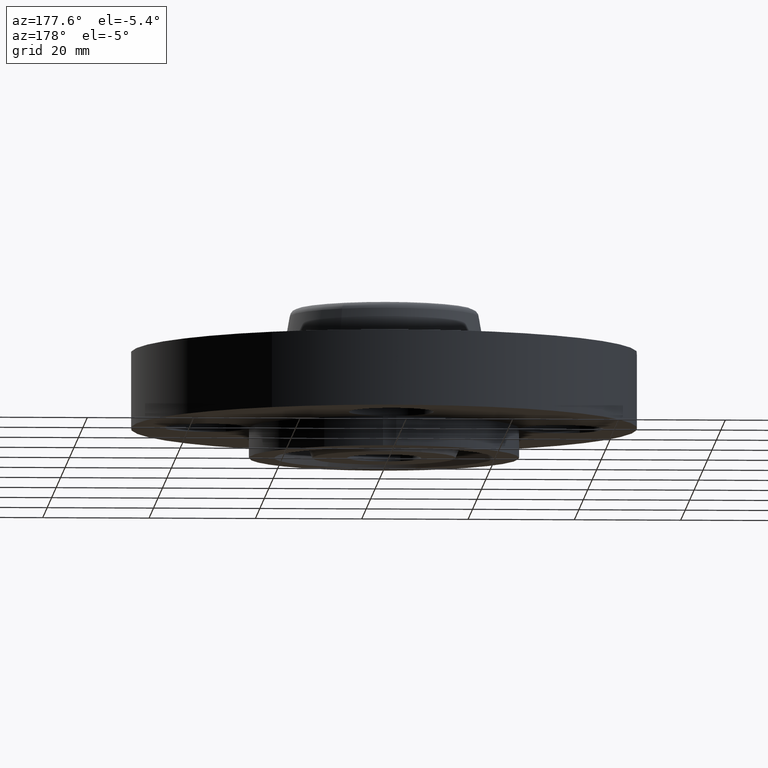
[diagram: clean part render]
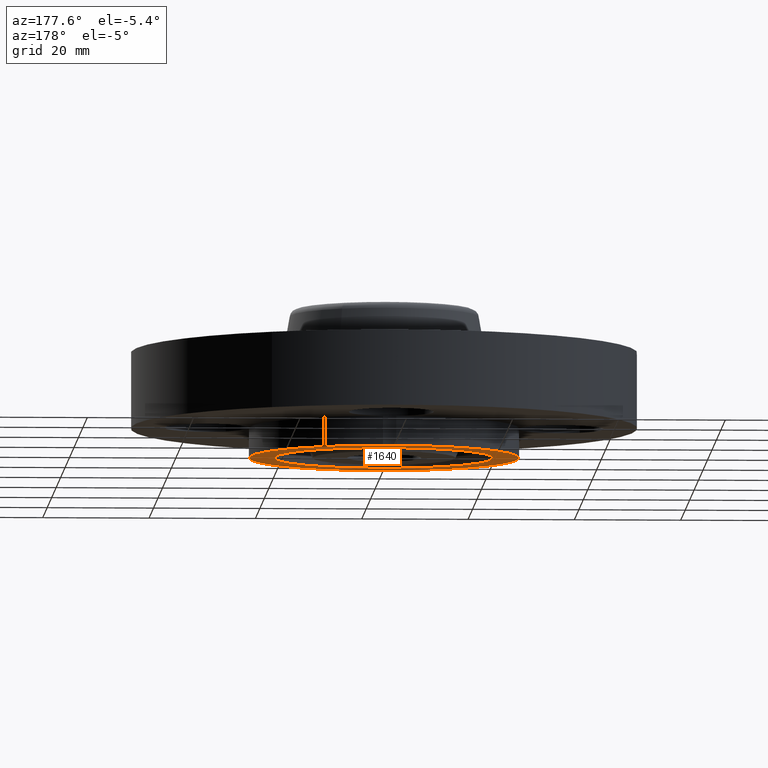
[diagram: same view with one face highlighted and labeled with its STEP entity id]
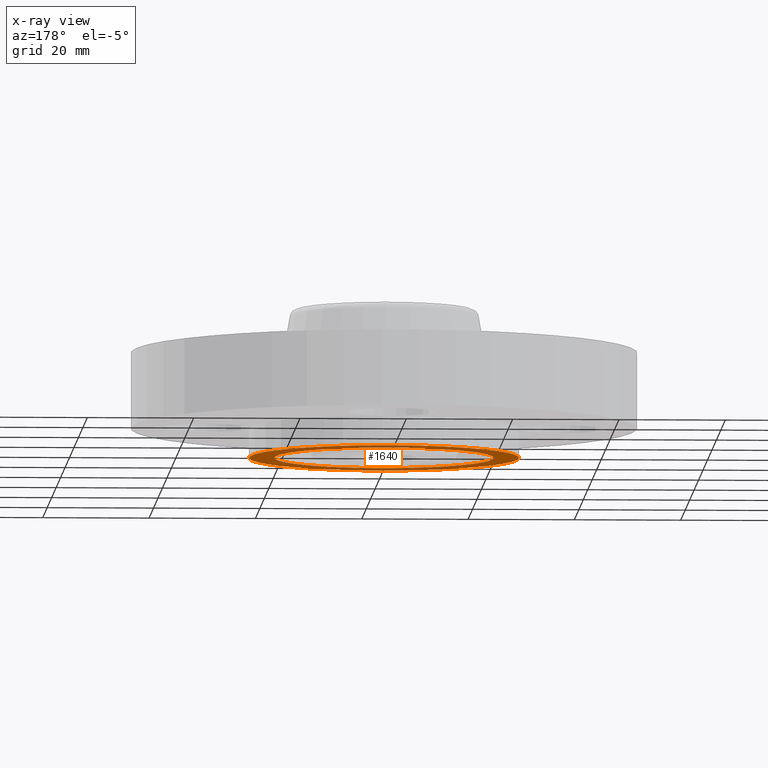
[diagram: x-ray of the same camera — body ghosted, the highlighted face saturated]
A machine part, auxiliary view. The second image highlights one B-rep face of the part: STEP entity #1640.
The next image is the same camera in x-ray: the body ghosted, the highlighted face saturated — about 0% of this face is hidden behind the body in this view.
In plain terms, the highlighted planar face has unit normal (0, 0, -1).
Its self-contained STEP definition (entity closure, byte-faithful):
#271=AXIS2_PLACEMENT_3D('Plane Axis2P3D',#268,#269,#270) ;
#1010=AXIS2_PLACEMENT_3D('Circle Axis2P3D',#1008,#1009,$) ;
#1073=AXIS2_PLACEMENT_3D('Circle Axis2P3D',#1071,#1072,$) ;
#1179=AXIS2_PLACEMENT_3D('Circle Axis2P3D',#1177,#1178,$) ;
#1285=AXIS2_PLACEMENT_3D('Circle Axis2P3D',#1283,#1284,$) ;
#1445=AXIS2_PLACEMENT_3D('Circle Axis2P3D',#1443,#1444,$) ;
#1483=AXIS2_PLACEMENT_3D('Circle Axis2P3D',#1481,#1482,$) ;
#1580=AXIS2_PLACEMENT_3D('Circle Axis2P3D',#1578,#1579,$) ;
#1599=AXIS2_PLACEMENT_3D('Circle Axis2P3D',#1597,#1598,$) ;
#1604=AXIS2_PLACEMENT_3D('Circle Axis2P3D',#1602,#1603,$) ;
#1611=AXIS2_PLACEMENT_3D('Circle Axis2P3D',#1609,#1610,$) ;
#1616=AXIS2_PLACEMENT_3D('Circle Axis2P3D',#1614,#1615,$) ;
#1621=AXIS2_PLACEMENT_3D('Circle Axis2P3D',#1619,#1620,$) ;
#268=CARTESIAN_POINT('Axis2P3D Location',(0.,0.273000000001,-0.219000000001)) ;
#1005=CARTESIAN_POINT('Vertex',(0.0488269755133,0.998807251894,-0.219000000001)) ;
#1008=CARTESIAN_POINT('Axis2P3D Location',(0.,1.31000000001,-0.218999999985)) ;
#1012=CARTESIAN_POINT('Vertex',(-0.0488269755133,0.998807251894,-0.219000000001)) ;
#1068=CARTESIAN_POINT('Vertex',(0.998807251893,-0.048826975513,-0.219000000001)) ;
#1071=CARTESIAN_POINT('Axis2P3D Location',(1.31000000001,8.02143653445E-017,-0.218999999985)) ;
#1075=CARTESIAN_POINT('Vertex',(0.998807251893,0.0488269755136,-0.219000000001)) ;
#1174=CARTESIAN_POINT('Vertex',(-0.0488269755133,-0.998807251893,-0.219000000001)) ;
#1177=CARTESIAN_POINT('Axis2P3D Location',(1.60428730689E-016,-1.31000000001,-0.218999999985)) ;
#1181=CARTESIAN_POINT('Vertex',(0.0488269755133,-0.998807251893,-0.219000000001)) ;
#1280=CARTESIAN_POINT('Vertex',(-0.998807251893,0.0488269755136,-0.219000000001)) ;
#1283=CARTESIAN_POINT('Axis2P3D Location',(-1.31000000001,-2.40643096033E-016,-0.218999999985)) ;
#1287=CARTESIAN_POINT('Vertex',(-0.998807251893,-0.048826975513,-0.219000000001)) ;
#1443=CARTESIAN_POINT('Axis2P3D Location',(0.,0.,-0.219000000001)) ;
#1447=CARTESIAN_POINT('Vertex',(0.389533250145,-0.713035831536,-0.219000000001)) ;
#1449=CARTESIAN_POINT('Vertex',(-0.389533250145,0.713035831536,-0.219000000001)) ;
#1481=CARTESIAN_POINT('Axis2P3D Location',(0.,0.,-0.219000000001)) ;
#1575=CARTESIAN_POINT('Vertex',(0.479425538595,0.877582561885,-0.219000000001)) ;
#1578=CARTESIAN_POINT('Axis2P3D Location',(0.,0.,-0.218999999995)) ;
#1597=CARTESIAN_POINT('Axis2P3D Location',(-8.25811510163E-011,8.28769074365E-011,-0.219000000001)) ;
#1602=CARTESIAN_POINT('Axis2P3D Location',(-8.48058631194E-011,-2.64434283744E-010,-0.219000000001)) ;
#1606=CARTESIAN_POINT('Vertex',(-0.479425538595,-0.877582561884,-0.219000000001)) ;
#1609=CARTESIAN_POINT('Axis2P3D Location',(-9.07886189674E-012,-1.07334613638E-011,-0.219000000001)) ;
#1614=CARTESIAN_POINT('Axis2P3D Location',(8.25811510163E-011,-8.22848351136E-011,-0.219000000001)) ;
#1619=CARTESIAN_POINT('Axis2P3D Location',(9.07886189674E-012,1.13255336867E-011,-0.219000000001)) ;
#269=DIRECTION('Axis2P3D Direction',(0.,0.,-0.0393700787402)) ;
#270=DIRECTION('Axis2P3D XDirection',(0.0393700787402,0.,0.)) ;
#1009=DIRECTION('Axis2P3D Direction',(0.,-0.,-0.0393700787402)) ;
#1072=DIRECTION('Axis2P3D Direction',(0.,-0.,-0.0393700787402)) ;
#1178=DIRECTION('Axis2P3D Direction',(0.,0.,-0.0393700787402)) ;
#1284=DIRECTION('Axis2P3D Direction',(0.,0.,-0.0393700787402)) ;
#1444=DIRECTION('Axis2P3D Direction',(0.,-0.,-0.0393700787402)) ;
#1482=DIRECTION('Axis2P3D Direction',(0.,-0.,-0.0393700787402)) ;
#1579=DIRECTION('Axis2P3D Direction',(0.,0.,-0.0393700787402)) ;
#1598=DIRECTION('Axis2P3D Direction',(0.,0.,-0.0393700787402)) ;
#1603=DIRECTION('Axis2P3D Direction',(0.,0.,-0.0393700787402)) ;
#1610=DIRECTION('Axis2P3D Direction',(0.,0.,-0.0393700787402)) ;
#1615=DIRECTION('Axis2P3D Direction',(0.,0.,-0.0393700787402)) ;
#1620=DIRECTION('Axis2P3D Direction',(0.,0.,-0.0393700787402)) ;
#1625=ORIENTED_EDGE('',*,*,#1601,.T.) ;
#1626=ORIENTED_EDGE('',*,*,#1183,.F.) ;
#1627=ORIENTED_EDGE('',*,*,#1608,.T.) ;
#1628=ORIENTED_EDGE('',*,*,#1613,.T.) ;
#1629=ORIENTED_EDGE('',*,*,#1289,.F.) ;
#1630=ORIENTED_EDGE('',*,*,#1618,.T.) ;
#1631=ORIENTED_EDGE('',*,*,#1014,.F.) ;
#1632=ORIENTED_EDGE('',*,*,#1582,.T.) ;
#1633=ORIENTED_EDGE('',*,*,#1623,.T.) ;
#1634=ORIENTED_EDGE('',*,*,#1077,.F.) ;
#1637=ORIENTED_EDGE('',*,*,#1451,.F.) ;
#1638=ORIENTED_EDGE('',*,*,#1485,.F.) ;
#1639=FACE_BOUND('',#1636,.T.) ;
#1640=ADVANCED_FACE('PartBody',(#1635,#1639),#272,.T.) ;
#1011=CIRCLE('generated circle',#1010,0.315000000001) ;
#1074=CIRCLE('generated circle',#1073,0.315000000001) ;
#1180=CIRCLE('generated circle',#1179,0.315000000001) ;
#1286=CIRCLE('generated circle',#1285,0.315000000001) ;
#1446=CIRCLE('generated circle',#1445,0.812500000003) ;
#1484=CIRCLE('generated circle',#1483,0.812500000003) ;
#1581=CIRCLE('generated circle',#1580,1.) ;
#1600=CIRCLE('generated circle',#1599,1.00000000007) ;
#1605=CIRCLE('generated circle',#1604,0.999999999718) ;
#1612=CIRCLE('generated circle',#1611,0.999999999977) ;
#1617=CIRCLE('generated circle',#1616,1.00000000007) ;
#1622=CIRCLE('generated circle',#1621,0.999999999977) ;
#1014=EDGE_CURVE('',#1006,#1013,#1011,.T.) ;
#1077=EDGE_CURVE('',#1069,#1076,#1074,.T.) ;
#1183=EDGE_CURVE('',#1175,#1182,#1180,.T.) ;
#1289=EDGE_CURVE('',#1281,#1288,#1286,.T.) ;
#1451=EDGE_CURVE('',#1448,#1450,#1446,.T.) ;
#1485=EDGE_CURVE('',#1450,#1448,#1484,.T.) ;
#1582=EDGE_CURVE('',#1006,#1576,#1581,.T.) ;
#1601=EDGE_CURVE('',#1069,#1182,#1600,.T.) ;
#1608=EDGE_CURVE('',#1175,#1607,#1605,.T.) ;
#1613=EDGE_CURVE('',#1607,#1288,#1612,.T.) ;
#1618=EDGE_CURVE('',#1281,#1013,#1617,.T.) ;
#1623=EDGE_CURVE('',#1576,#1076,#1622,.T.) ;
#1624=EDGE_LOOP('',(#1625,#1626,#1627,#1628,#1629,#1630,#1631,#1632,#1633,#1634)) ;
#1636=EDGE_LOOP('',(#1637,#1638)) ;
#1635=FACE_OUTER_BOUND('',#1624,.T.) ;
#272=PLANE('',#271) ;
#1006=VERTEX_POINT('',#1005) ;
#1013=VERTEX_POINT('',#1012) ;
#1069=VERTEX_POINT('',#1068) ;
#1076=VERTEX_POINT('',#1075) ;
#1175=VERTEX_POINT('',#1174) ;
#1182=VERTEX_POINT('',#1181) ;
#1281=VERTEX_POINT('',#1280) ;
#1288=VERTEX_POINT('',#1287) ;
#1448=VERTEX_POINT('',#1447) ;
#1450=VERTEX_POINT('',#1449) ;
#1576=VERTEX_POINT('',#1575) ;
#1607=VERTEX_POINT('',#1606) ;